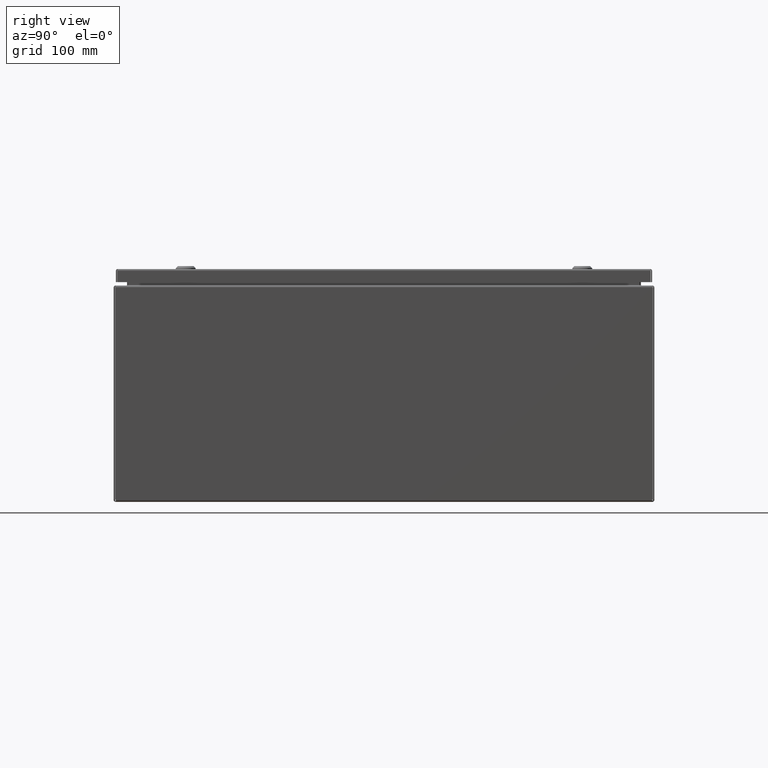
[diagram: clean part render]
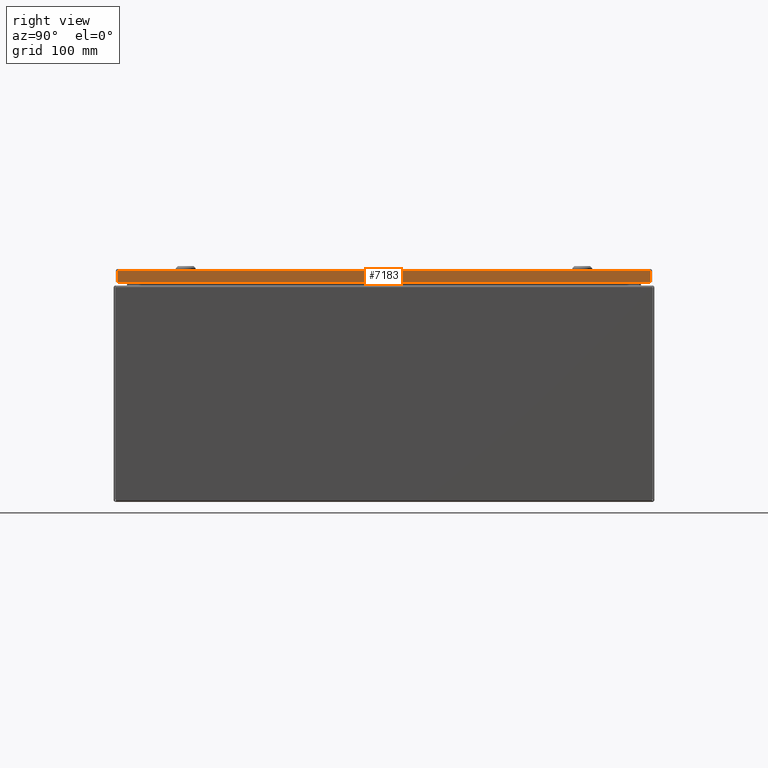
[diagram: same view with one face highlighted and labeled with its STEP entity id]
A machine part, right view. The second image highlights one B-rep face of the part: STEP entity #7183.
In plain terms, the highlighted planar face has unit normal (-1, -0, 0).
Its self-contained STEP definition (entity closure, byte-faithful):
#6935=CARTESIAN_POINT('',(-2.972699E-015,29.664951456543957,0.105250000000007));
#6936=VERTEX_POINT('',#6935);
#6937=CARTESIAN_POINT('',(6.039825E-015,0.085048543456044,0.105250000000001));
#6938=VERTEX_POINT('',#6937);
#6939=CARTESIAN_POINT('',(-2.976375E-015,29.664951456543957,0.105250000000000));
#6940=DIRECTION('',(0.0,-1.0,0.0));
#6941=VECTOR('',#6940,29.579902913087913);
#6942=LINE('',#6939,#6941);
#6943=EDGE_CURVE('',#6936,#6938,#6942,.T.);
#7021=CARTESIAN_POINT('',(5.979717E-015,0.085048543456044,0.730000000000001));
#7022=VERTEX_POINT('',#7021);
#7023=CARTESIAN_POINT('',(5.979717E-015,0.085048543456044,0.730000000000001));
#7024=DIRECTION('',(0.0,0.0,-1.0));
#7025=VECTOR('',#7024,0.624750000000000);
#7026=LINE('',#7023,#7025);
#7027=EDGE_CURVE('',#7022,#6938,#7026,.T.);
#7136=CARTESIAN_POINT('',(-3.043734E-015,29.664951456543957,0.730000000000007));
#7137=VERTEX_POINT('',#7136);
#7138=CARTESIAN_POINT('',(-2.983626E-015,29.664951456543957,0.105250000000007));
#7139=DIRECTION('',(0.0,0.0,1.0));
#7140=VECTOR('',#7139,0.624750000000000);
#7141=LINE('',#7138,#7140);
#7142=EDGE_CURVE('',#6936,#7137,#7141,.T.);
#7160=CARTESIAN_POINT('',(-3.021880E-015,29.664951456543957,0.730000000000007));
#7161=DIRECTION('',(0.0,-1.0,0.0));
#7162=VECTOR('',#7161,29.579902913087913);
#7163=LINE('',#7160,#7162);
#7164=EDGE_CURVE('',#7137,#7022,#7163,.T.);
#7172=CARTESIAN_POINT('',(1.506138E-015,14.874999999999998,0.374696241644326));
#7173=DIRECTION('',(1.0,0.0,0.0));
#7174=DIRECTION('',(0.0,0.0,-1.0));
#7175=AXIS2_PLACEMENT_3D('',#7172,#7173,#7174);
#7176=PLANE('',#7175);
#7177=ORIENTED_EDGE('',*,*,#6943,.T.);
#7178=ORIENTED_EDGE('',*,*,#7027,.F.);
#7179=ORIENTED_EDGE('',*,*,#7164,.F.);
#7180=ORIENTED_EDGE('',*,*,#7142,.F.);
#7181=EDGE_LOOP('',(#7177,#7178,#7179,#7180));
#7182=FACE_OUTER_BOUND('',#7181,.T.);
#7183=ADVANCED_FACE('',(#7182),#7176,.F.);